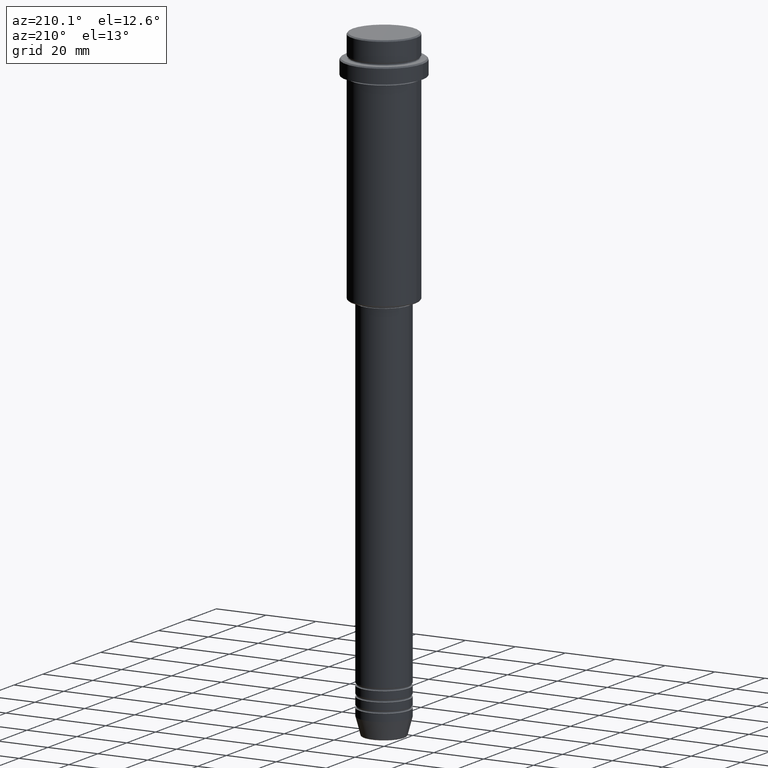
[diagram: clean part render]
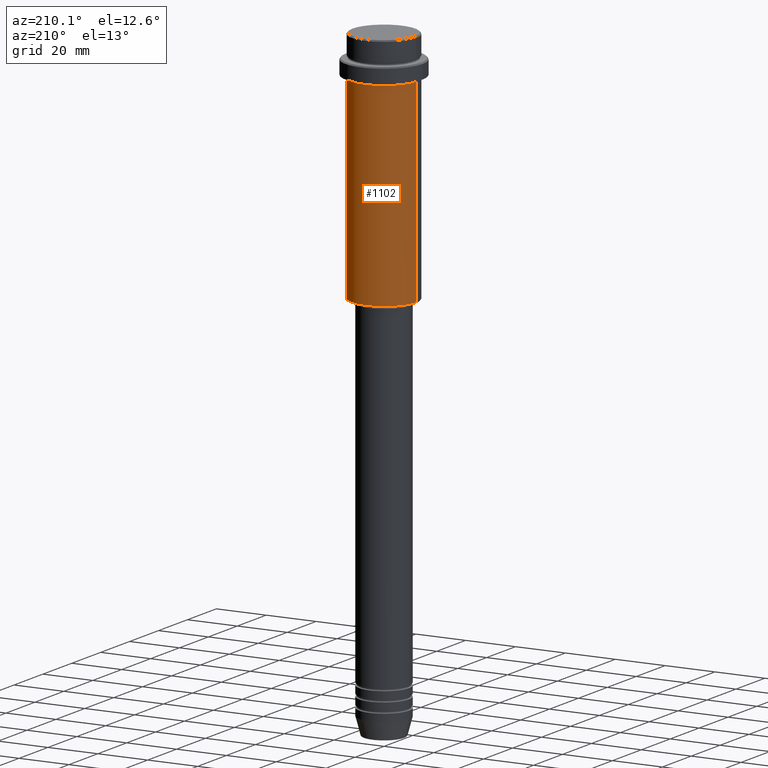
[diagram: same view with one face highlighted and labeled with its STEP entity id]
A machine part, auxiliary view. The second image highlights one B-rep face of the part: STEP entity #1102.
In plain terms, the highlighted cylindrical surface (partial cylindrical patch) has radius 13 mm, axis along (-0, -0, 1).
Its self-contained STEP definition (entity closure, byte-faithful):
#6 = LINE ( 'NONE', #14, #1064 ) ;
#14 = CARTESIAN_POINT ( 'NONE',  ( -13.00000000000000000, 1.592040838891559095E-15, 0.000000000000000000 ) ) ;
#33 = AXIS2_PLACEMENT_3D ( 'NONE', #350, #376, #467 ) ;
#69 = DIRECTION ( 'NONE',  ( -0.000000000000000000, -0.000000000000000000, 1.000000000000000000 ) ) ;
#138 = VERTEX_POINT ( 'NONE', #634 ) ;
#195 = VERTEX_POINT ( 'NONE', #981 ) ;
#231 = VECTOR ( 'NONE', #69, 1000.000000000000000 ) ;
#288 = AXIS2_PLACEMENT_3D ( 'NONE', #713, #1036, #1257 ) ;
#350 = CARTESIAN_POINT ( 'NONE',  ( 0.000000000000000000, 0.000000000000000000, -16.00000000000000000 ) ) ;
#376 = DIRECTION ( 'NONE',  ( -0.000000000000000000, -0.000000000000000000, 1.000000000000000000 ) ) ;
#408 = LINE ( 'NONE', #957, #231 ) ;
#430 = EDGE_CURVE ( 'NONE', #138, #561, #408, .T. ) ;
#456 = CARTESIAN_POINT ( 'NONE',  ( -13.00000000000000000, 1.592040838891559095E-15, -94.50000000000000000 ) ) ;
#467 = DIRECTION ( 'NONE',  ( 1.000000000000000000, 0.000000000000000000, 0.000000000000000000 ) ) ;
#561 = VERTEX_POINT ( 'NONE', #708 ) ;
#574 = EDGE_LOOP ( 'NONE', ( #1010, #711, #914, #1346 ) ) ;
#634 = CARTESIAN_POINT ( 'NONE',  ( 13.00000000000000000, 0.000000000000000000, -94.50000000000000000 ) ) ;
#708 = CARTESIAN_POINT ( 'NONE',  ( 13.00000000000000000, 0.000000000000000000, -16.00000000000000000 ) ) ;
#711 = ORIENTED_EDGE ( 'NONE', *, *, #1344, .T. ) ;
#713 = CARTESIAN_POINT ( 'NONE',  ( 0.000000000000000000, 0.000000000000000000, 0.000000000000000000 ) ) ;
#817 = CYLINDRICAL_SURFACE ( 'NONE', #288, 13.00000000000000000 ) ;
#835 = FACE_OUTER_BOUND ( 'NONE', #574, .T. ) ;
#843 = CARTESIAN_POINT ( 'NONE',  ( 0.000000000000000000, 0.000000000000000000, -94.50000000000000000 ) ) ;
#850 = DIRECTION ( 'NONE',  ( -0.000000000000000000, -0.000000000000000000, 1.000000000000000000 ) ) ;
#865 = EDGE_CURVE ( 'NONE', #561, #195, #1062, .T. ) ;
#869 = DIRECTION ( 'NONE',  ( -0.000000000000000000, -0.000000000000000000, 1.000000000000000000 ) ) ;
#914 = ORIENTED_EDGE ( 'NONE', *, *, #865, .F. ) ;
#917 = VERTEX_POINT ( 'NONE', #456 ) ;
#957 = CARTESIAN_POINT ( 'NONE',  ( 13.00000000000000000, 0.000000000000000000, 0.000000000000000000 ) ) ;
#981 = CARTESIAN_POINT ( 'NONE',  ( -13.00000000000000000, 1.592040838891559095E-15, -16.00000000000000000 ) ) ;
#1010 = ORIENTED_EDGE ( 'NONE', *, *, #1047, .T. ) ;
#1036 = DIRECTION ( 'NONE',  ( -0.000000000000000000, -0.000000000000000000, 1.000000000000000000 ) ) ;
#1047 = EDGE_CURVE ( 'NONE', #138, #917, #1089, .T. ) ;
#1062 = CIRCLE ( 'NONE', #33, 13.00000000000000000 ) ;
#1064 = VECTOR ( 'NONE', #869, 1000.000000000000000 ) ;
#1089 = CIRCLE ( 'NONE', #1216, 13.00000000000000000 ) ;
#1102 = ADVANCED_FACE ( 'NONE', ( #835 ), #817, .T. ) ;
#1216 = AXIS2_PLACEMENT_3D ( 'NONE', #843, #850, #1283 ) ;
#1257 = DIRECTION ( 'NONE',  ( 1.000000000000000000, 0.000000000000000000, 0.000000000000000000 ) ) ;
#1283 = DIRECTION ( 'NONE',  ( -1.000000000000000000, 0.000000000000000000, 0.000000000000000000 ) ) ;
#1344 = EDGE_CURVE ( 'NONE', #917, #195, #6, .T. ) ;
#1346 = ORIENTED_EDGE ( 'NONE', *, *, #430, .F. ) ;